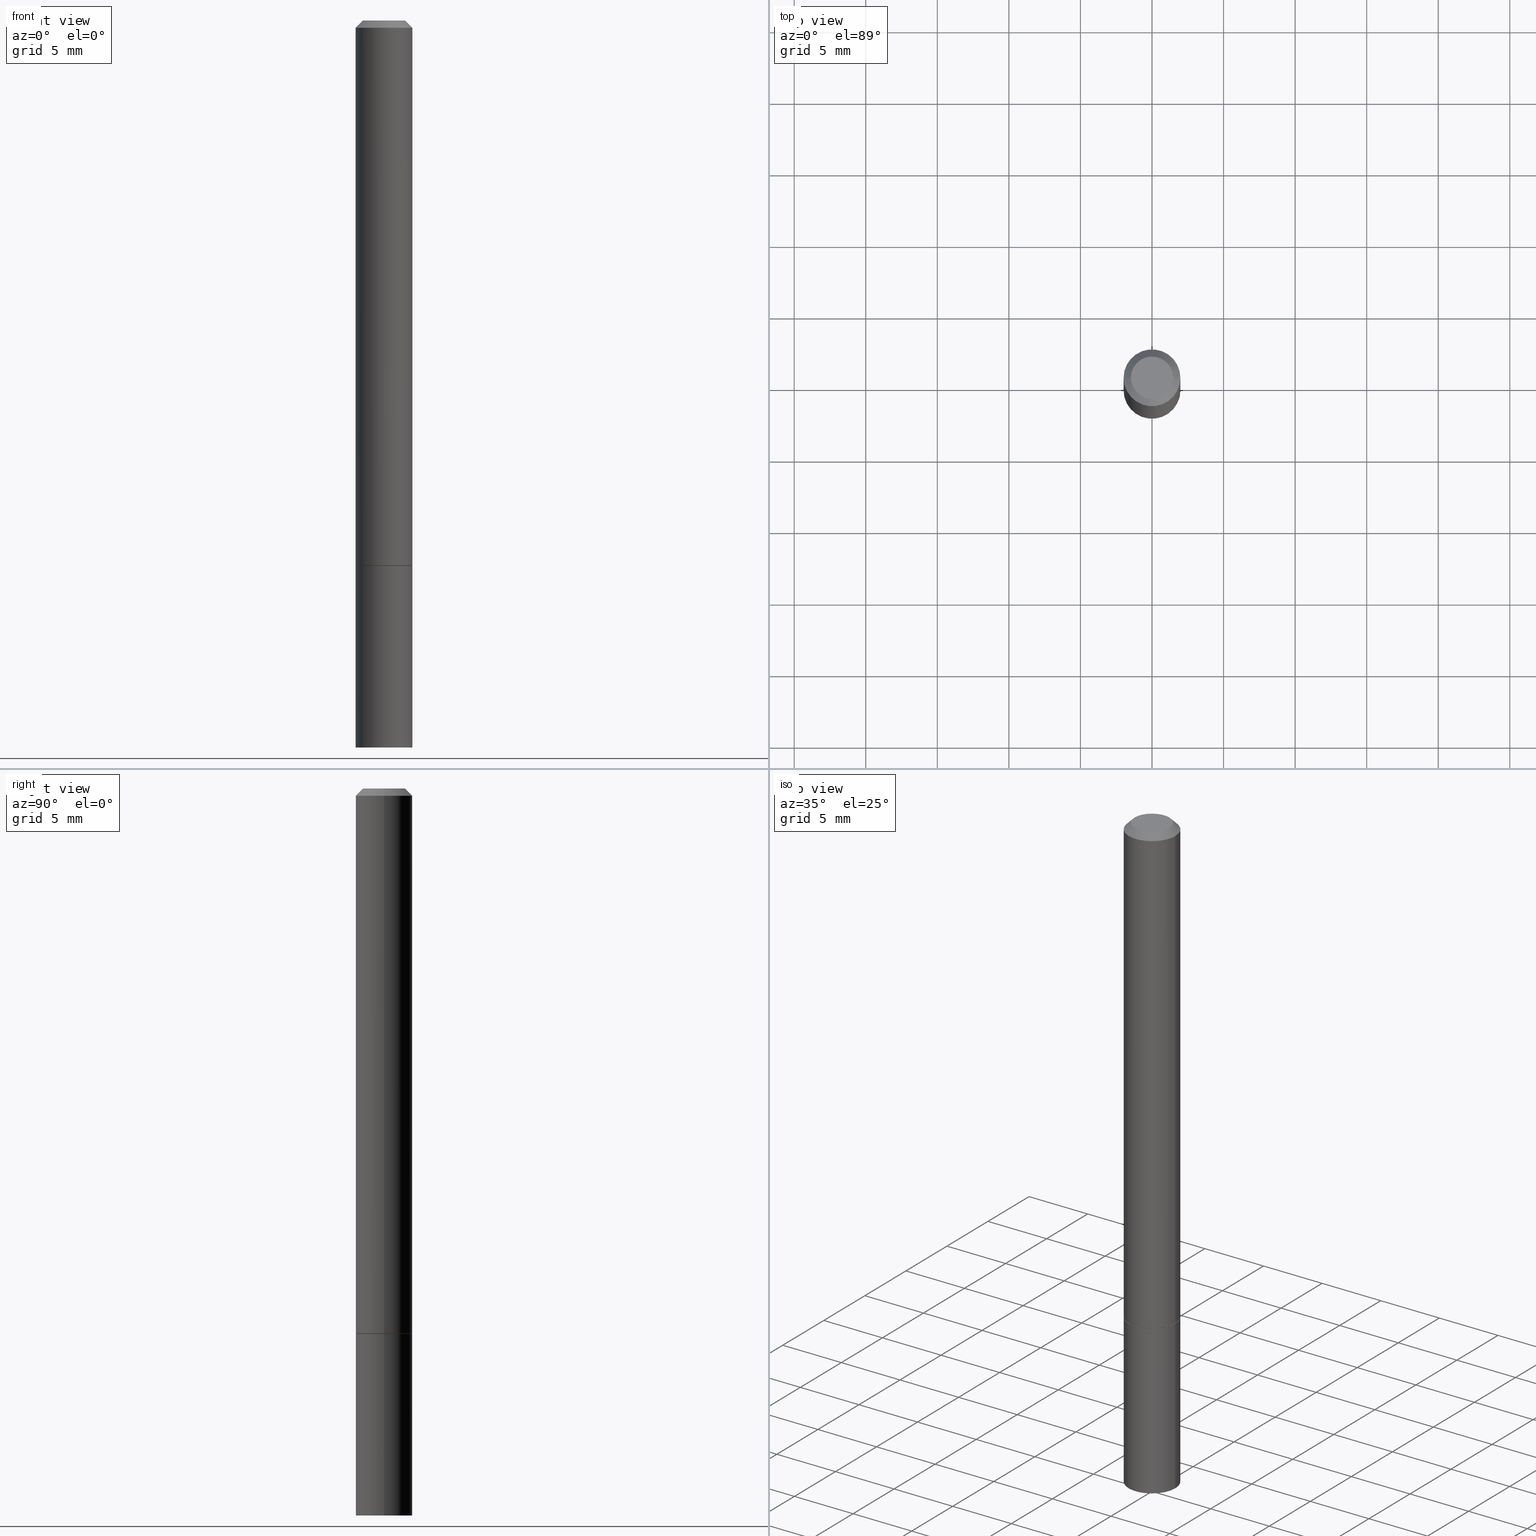
[diagram: canonical four-view strip — front | top / right | iso, engineering-drawing reading convention]
A machine part, canonical four-view strip (front | top / right | iso — engineering-drawing reading convention). The complete STEP part file that produces these views, byte-faithful:
ISO-10303-21;
HEADER;
FILE_DESCRIPTION (( 'STEP AP203' ),
    '1' );
FILE_NAME ('30119.STEP',
    '2023-03-21T20:22:02',
    ( '' ),
    ( '' ),
    'SwSTEP 2.0',
    'SolidWorks 2022',
    '' );
FILE_SCHEMA (( 'CONFIG_CONTROL_DESIGN' ));
ENDSEC;

DATA;
#1 = CARTESIAN_POINT ( 'NONE',  ( 0.07809999999999980846, -6.056345204028183286E-16, -0.02000000000000001776 ) ) ;
#2 = EDGE_LOOP ( 'NONE', ( #223, #321, #29, #153 ) ) ;
#3 = LOCAL_TIME ( 16, 22, 2.000000000000000000, #111 ) ;
#4 = CIRCLE ( 'NONE', #159, 0.07810000000000000275 ) ;
#5 = DIRECTION ( 'NONE',  ( -2.445468806185136877E-29, 3.491481338843145188E-15, 1.000000000000000000 ) ) ;
#6 = FACE_OUTER_BOUND ( 'NONE', #323, .T. ) ;
#7 = PERSON_AND_ORGANIZATION ( #191, #105 ) ;
#8 = CC_DESIGN_DATE_AND_TIME_ASSIGNMENT ( #183, #296, ( #275 ) ) ;
#9 = DIRECTION ( 'NONE',  ( 2.438088387897960049E-29, -3.491481338843145188E-15, -1.000000000000000000 ) ) ;
#10 = AXIS2_PLACEMENT_3D ( 'NONE', #246, #36, #301 ) ;
#11 = AXIS2_PLACEMENT_3D ( 'NONE', #282, #156, #92 ) ;
#12 = CARTESIAN_POINT ( 'NONE',  ( 0.07810000000000000275, -5.453693851272974364E-16, 3.808294061896625703E-30 ) ) ;
#13 = CARTESIAN_POINT ( 'NONE',  ( -0.07809999999999991949, -6.437593292558994518E-15, -2.000000000000000000 ) ) ;
#14 = ADVANCED_FACE ( 'NONE', ( #158 ), #27, .T. ) ;
#15 = FACE_OUTER_BOUND ( 'NONE', #293, .T. ) ;
#16 = CARTESIAN_POINT ( 'NONE',  ( 3.665757740471518732E-29, -5.233730526925875170E-15, -1.498999999999999666 ) ) ;
#17 = APPLICATION_CONTEXT ( 'configuration controlled 3d designs of mechanical parts and assemblies' ) ;
#18 = APPROVAL ( #133, 'UNSPECIFIED' ) ;
#19 = CIRCLE ( 'NONE', #20, 0.07809999999999980846 ) ;
#20 = AXIS2_PLACEMENT_3D ( 'NONE', #333, #33, #160 ) ;
#21 = EDGE_CURVE ( 'NONE', #55, #366, #64, .T. ) ;
#22 = EDGE_CURVE ( 'NONE', #108, #347, #68, .T. ) ;
#23 = CARTESIAN_POINT ( 'NONE',  ( 0.07810000000000000275, -5.782591393392014824E-15, -1.499999999999999778 ) ) ;
#24 = FACE_OUTER_BOUND ( 'NONE', #91, .T. ) ;
#25 = EDGE_LOOP ( 'NONE', ( #232, #88, #78, #61 ) ) ;
#26 = ORIENTED_EDGE ( 'NONE', *, *, #225, .T. ) ;
#27 = CYLINDRICAL_SURFACE ( 'NONE', #274, 0.07809999999999991949 ) ;
#28 = ORIENTED_EDGE ( 'NONE', *, *, #337, .T. ) ;
#29 = ORIENTED_EDGE ( 'NONE', *, *, #327, .F. ) ;
#30 = CC_DESIGN_PERSON_AND_ORGANIZATION_ASSIGNMENT ( #240, #368, ( #86 ) ) ;
#31 = PERSON_AND_ORGANIZATION ( #191, #105 ) ;
#32 = CARTESIAN_POINT ( 'NONE',  ( 4.890937612370273194E-29, -6.982962677686291165E-15, -2.000000000000000000 ) ) ;
#33 = DIRECTION ( 'NONE',  ( -2.445468806185136597E-29, 3.491481338843145583E-15, 1.000000000000000000 ) ) ;
#34 = COORDINATED_UNIVERSAL_TIME_OFFSET ( 5, 0, .BEHIND. ) ;
#35 = DIRECTION ( 'NONE',  ( -2.445468806185136877E-29, 3.491481338843145188E-15, 1.000000000000000000 ) ) ;
#36 = DIRECTION ( 'NONE',  ( -2.445468806185136597E-29, 3.491481338843145583E-15, 1.000000000000000000 ) ) ;
#37 = ADVANCED_FACE ( 'NONE', ( #99 ), #63, .T. ) ;
#38 = VECTOR ( 'NONE', #188, 39.37007874015748143 ) ;
#39 = AXIS2_PLACEMENT_3D ( 'NONE', #290, #317, #113 ) ;
#40 = DIRECTION ( 'NONE',  ( 1.000000000000000000, -6.982962677686265922E-15, 0.000000000000000000 ) ) ;
#41 = CARTESIAN_POINT ( 'NONE',  ( -0.07809999999999991949, 5.549338766286376731E-16, -3.841688305489077071E-30 ) ) ;
#42 = PRODUCT ( '30119', '30119', '', ( #87 ) ) ;
#43 = DIRECTION ( 'NONE',  ( -2.445468806185136597E-29, 3.491481338843145583E-15, 1.000000000000000000 ) ) ;
#44 = FACE_OUTER_BOUND ( 'NONE', #204, .T. ) ;
#45 = AXIS2_PLACEMENT_3D ( 'NONE', #208, #228, #83 ) ;
#46 = CC_DESIGN_PERSON_AND_ORGANIZATION_ASSIGNMENT ( #145, #101, ( #275 ) ) ;
#47 = ADVANCED_FACE ( 'NONE', ( #6 ), #310, .F. ) ;
#48 = VERTEX_POINT ( 'NONE', #302 ) ;
#49 = ADVANCED_FACE ( 'NONE', ( #44 ), #276, .T. ) ;
#50 = LOCAL_TIME ( 16, 22, 2.000000000000000000, #184 ) ;
#51 = CIRCLE ( 'NONE', #284, 0.05809999999999985315 ) ;
#52 =( GEOMETRIC_REPRESENTATION_CONTEXT ( 3 ) GLOBAL_UNCERTAINTY_ASSIGNED_CONTEXT ( ( #224 ) ) GLOBAL_UNIT_ASSIGNED_CONTEXT ( ( #234, #125, #236 ) ) REPRESENTATION_CONTEXT ( 'NONE', 'WORKASPACE' ) );
#53 = CARTESIAN_POINT ( 'NONE',  ( 5.019963266536729081E-19, -6.968671878504553375E-15, -1.995906952437995097 ) ) ;
#54 = VERTEX_POINT ( 'NONE', #230 ) ;
#55 = VERTEX_POINT ( 'NONE', #363 ) ;
#56 = ORIENTED_EDGE ( 'NONE', *, *, #168, .F. ) ;
#57 = ORIENTED_EDGE ( 'NONE', *, *, #264, .T. ) ;
#58 = DIRECTION ( 'NONE',  ( 1.000000000000000000, 0.000000000000000000, 0.000000000000000000 ) ) ;
#59 = ORIENTED_EDGE ( 'NONE', *, *, #21, .F. ) ;
#60 = CONICAL_SURFACE ( 'NONE', #39, 751.2258538476644389, 1.518436449235073482 ) ;
#61 = ORIENTED_EDGE ( 'NONE', *, *, #291, .F. ) ;
#62 = LINE ( 'NONE', #1, #174 ) ;
#63 = CYLINDRICAL_SURFACE ( 'NONE', #127, 0.07809999999999991949 ) ;
#64 = CIRCLE ( 'NONE', #45, 0.07810000000000000275 ) ;
#65 = APPROVAL_ROLE ( '' ) ;
#66 = CIRCLE ( 'NONE', #325, 0.07809999999999980846 ) ;
#67 = LOCAL_TIME ( 16, 22, 2.000000000000000000, #34 ) ;
#68 = LINE ( 'NONE', #12, #182 ) ;
#69 = PERSON_AND_ORGANIZATION_ROLE ( 'creator' ) ;
#70 = CARTESIAN_POINT ( 'NONE',  ( 0.07809999999999991949, -7.518767571312248168E-15, -2.000000000000000000 ) ) ;
#71 = FACE_OUTER_BOUND ( 'NONE', #155, .T. ) ;
#72 = CLOSED_SHELL ( 'NONE', ( #49, #14, #123, #370, #37, #260, #271, #144 ) ) ;
#73 = DIRECTION ( 'NONE',  ( -1.000000000000000000, 6.982962677686265922E-15, -4.876176775795935793E-29 ) ) ;
#74 = EDGE_CURVE ( 'NONE', #194, #390, #237, .T. ) ;
#75 = AXIS2_PLACEMENT_3D ( 'NONE', #350, #313, #359 ) ;
#76 = APPROVAL_DATE_TIME ( #82, #163 ) ;
#77 = CARTESIAN_POINT ( 'NONE',  ( -0.07809999999999980846, 4.755397583504331521E-16, -0.02000000000000001776 ) ) ;
#78 = ORIENTED_EDGE ( 'NONE', *, *, #342, .T. ) ;
#79 = APPROVAL ( #330, 'UNSPECIFIED' ) ;
#80 = CARTESIAN_POINT ( 'NONE',  ( 4.880577650073855844E-29, -6.969173874831158221E-15, -1.995906952437995097 ) ) ;
#81 = DIRECTION ( 'NONE',  ( -2.445468806185136597E-29, 3.491481338843145583E-15, 1.000000000000000000 ) ) ;
#82 = DATE_AND_TIME ( #227, #3 ) ;
#83 = DIRECTION ( 'NONE',  ( 1.000000000000000000, -6.982962677686266711E-15, 0.000000000000000000 ) ) ;
#84 = VERTEX_POINT ( 'NONE', #80 ) ;
#85 = AXIS2_PLACEMENT_3D ( 'NONE', #170, #273, #121 ) ;
#86 = PRODUCT_DEFINITION_FORMATION_WITH_SPECIFIED_SOURCE ( 'ANY', '', #42, .NOT_KNOWN. ) ;
#87 = MECHANICAL_CONTEXT ( 'NONE', #329, 'mechanical' ) ;
#88 = ORIENTED_EDGE ( 'NONE', *, *, #373, .T. ) ;
#89 = CARTESIAN_POINT ( 'NONE',  ( -5.019963265560543563E-19, -6.968671878504553375E-15, -1.995906952437995097 ) ) ;
#90 = DIRECTION ( 'NONE',  ( -2.445468806185136597E-29, 3.491481338843145583E-15, 1.000000000000000000 ) ) ;
#91 = EDGE_LOOP ( 'NONE', ( #117, #322 ) ) ;
#92 = DIRECTION ( 'NONE',  ( -1.000000000000000000, 6.982962677686267499E-15, 0.000000000000000000 ) ) ;
#93 = EDGE_LOOP ( 'NONE', ( #315, #308, #383, #365 ) ) ;
#94 = MANIFOLD_SOLID_BREP ( 'Body-Move/Copy2[2]', #72 ) ;
#95 = CARTESIAN_POINT ( 'NONE',  ( -0.07810000000000000275, -2.096846200222727419E-15, -1.498999999999999666 ) ) ;
#96 = ORIENTED_EDGE ( 'NONE', *, *, #139, .T. ) ;
#97 = EDGE_CURVE ( 'NONE', #108, #154, #171, .T. ) ;
#98 = SHAPE_DEFINITION_REPRESENTATION ( #217, #377 ) ;
#99 = FACE_OUTER_BOUND ( 'NONE', #93, .T. ) ;
#100 = DATE_TIME_ROLE ( 'classification_date' ) ;
#101 = PERSON_AND_ORGANIZATION_ROLE ( 'creator' ) ;
#102 = VECTOR ( 'NONE', #220, 39.37007874015748143 ) ;
#103 = FACE_OUTER_BOUND ( 'NONE', #180, .T. ) ;
#104 = CARTESIAN_POINT ( 'NONE',  ( 3.668203209277704335E-29, -5.237222008264717388E-15, -1.499999999999999778 ) ) ;
#105 = ORGANIZATION ( 'UNSPECIFIED', 'UNSPECIFIED', '' ) ;
#106 = AXIS2_PLACEMENT_3D ( 'NONE', #32, #298, #130 ) ;
#107 = VECTOR ( 'NONE', #389, 39.37007874015748143 ) ;
#108 = VERTEX_POINT ( 'NONE', #70 ) ;
#109 = ORIENTED_EDGE ( 'NONE', *, *, #74, .T. ) ;
#110 = CARTESIAN_POINT ( 'NONE',  ( 0.000000000000000000, 0.000000000000000000, 0.000000000000000000 ) ) ;
#111 = COORDINATED_UNIVERSAL_TIME_OFFSET ( 5, 0, .BEHIND. ) ;
#112 = DIRECTION ( 'NONE',  ( 1.000000000000000000, -6.982962677686266711E-15, 4.876176775795935232E-29 ) ) ;
#113 = DIRECTION ( 'NONE',  ( -1.000000000000000000, 6.982962677686265922E-15, 0.000000000000000000 ) ) ;
#114 = DIRECTION ( 'NONE',  ( -1.000000000000000000, 6.982962677686265922E-15, 0.000000000000000000 ) ) ;
#115 = DIRECTION ( 'NONE',  ( 1.000000000000000000, -6.982962677686266711E-15, 4.876176775795935793E-29 ) ) ;
#116 = ORIENTED_EDGE ( 'NONE', *, *, #373, .F. ) ;
#117 = ORIENTED_EDGE ( 'NONE', *, *, #249, .F. ) ;
#118 = CIRCLE ( 'NONE', #229, 0.07710000000000000187 ) ;
#119 = CARTESIAN_POINT ( 'NONE',  ( 0.07710000000000000187, -5.775608430714328810E-15, -1.499999999999999778 ) ) ;
#120 = EDGE_CURVE ( 'NONE', #84, #154, #197, .T. ) ;
#121 = DIRECTION ( 'NONE',  ( 1.000000000000000000, -6.982962677686265922E-15, 0.000000000000000000 ) ) ;
#122 = ORIENTED_EDGE ( 'NONE', *, *, #288, .F. ) ;
#123 = ADVANCED_FACE ( 'NONE', ( #202 ), #300, .T. ) ;
#124 = ORIENTED_EDGE ( 'NONE', *, *, #337, .F. ) ;
#125 =( NAMED_UNIT ( * ) PLANE_ANGLE_UNIT ( ) SI_UNIT ( $, .RADIAN. ) );
#126 = ADVANCED_FACE ( 'NONE', ( #103 ), #261, .F. ) ;
#127 = AXIS2_PLACEMENT_3D ( 'NONE', #131, #135, #244 ) ;
#128 = LOCAL_TIME ( 16, 22, 2.000000000000000000, #242 ) ;
#129 = APPROVAL_ROLE ( '' ) ;
#130 = DIRECTION ( 'NONE',  ( 1.000000000000000000, -6.982962677686266711E-15, 0.000000000000000000 ) ) ;
#131 = CARTESIAN_POINT ( 'NONE',  ( 0.000000000000000000, 0.000000000000000000, 0.000000000000000000 ) ) ;
#132 = ORIENTED_EDGE ( 'NONE', *, *, #97, .F. ) ;
#133 = APPROVAL_STATUS ( 'not_yet_approved' ) ;
#134 = DIRECTION ( 'NONE',  ( -2.445468806185136597E-29, 3.491481338843145583E-15, 1.000000000000000000 ) ) ;
#135 = DIRECTION ( 'NONE',  ( -2.445468806185136597E-29, 3.491481338843145583E-15, 1.000000000000000000 ) ) ;
#136 = DIRECTION ( 'NONE',  ( -2.445468806185136597E-29, 3.491481338843145583E-15, 1.000000000000000000 ) ) ;
#137 = DIMENSIONAL_EXPONENTS ( 1.000000000000000000, 0.000000000000000000, 0.000000000000000000, 0.000000000000000000, 0.000000000000000000, 0.000000000000000000, 0.000000000000000000 ) ;
#138 = CYLINDRICAL_SURFACE ( 'NONE', #305, 0.07810000000000000275 ) ;
#139 = EDGE_CURVE ( 'NONE', #366, #286, #355, .T. ) ;
#140 = DIRECTION ( 'NONE',  ( 1.000000000000000000, -6.982962677686266711E-15, 0.000000000000000000 ) ) ;
#141 = AXIS2_PLACEMENT_3D ( 'NONE', #270, #136, #372 ) ;
#142 = AXIS2_PLACEMENT_3D ( 'NONE', #360, #203, #58 ) ;
#143 = CARTESIAN_POINT ( 'NONE',  ( 3.668203209277704335E-29, -5.237222008264717388E-15, -1.499999999999999778 ) ) ;
#144 = ADVANCED_FACE ( 'NONE', ( #71 ), #169, .F. ) ;
#145 = PERSON_AND_ORGANIZATION ( #191, #105 ) ;
#146 = AXIS2_PLACEMENT_3D ( 'NONE', #149, #386, #114 ) ;
#147 = CC_DESIGN_APPROVAL ( #79, ( #238 ) ) ;
#148 = ORIENTED_EDGE ( 'NONE', *, *, #120, .F. ) ;
#149 = CARTESIAN_POINT ( 'NONE',  ( 1.011592276483428826E-27, -1.444285671085496418E-13, -41.36598569259547986 ) ) ;
#150 = DIRECTION ( 'NONE',  ( 2.438088387897960049E-29, -3.491481338843145188E-15, -1.000000000000000000 ) ) ;
#151 = DIRECTION ( 'NONE',  ( 0.7071067811865464625, -7.319954787623252890E-15, -0.7071067811865485719 ) ) ;
#152 = DIRECTION ( 'NONE',  ( 0.9986295347545742773, -7.033825938271998700E-15, -0.05233595624293709697 ) ) ;
#153 = ORIENTED_EDGE ( 'NONE', *, *, #22, .F. ) ;
#154 = VERTEX_POINT ( 'NONE', #13 ) ;
#155 = EDGE_LOOP ( 'NONE', ( #173, #201 ) ) ;
#156 = DIRECTION ( 'NONE',  ( 2.445468806185136597E-29, -3.491481338843145583E-15, -1.000000000000000000 ) ) ;
#157 = ORIENTED_EDGE ( 'NONE', *, *, #288, .T. ) ;
#158 = FACE_OUTER_BOUND ( 'NONE', #361, .T. ) ;
#159 = AXIS2_PLACEMENT_3D ( 'NONE', #351, #81, #198 ) ;
#160 = DIRECTION ( 'NONE',  ( 1.000000000000000000, -6.982962677686267499E-15, 0.000000000000000000 ) ) ;
#161 = DATE_AND_TIME ( #334, #277 ) ;
#162 = COORDINATED_UNIVERSAL_TIME_OFFSET ( 5, 0, .BEHIND. ) ;
#163 = APPROVAL ( #376, 'UNSPECIFIED' ) ;
#164 = CARTESIAN_POINT ( 'NONE',  ( 4.057101315735710372E-16, 0.05809999999999985315, -2.028550657867862335E-16 ) ) ;
#165 = VECTOR ( 'NONE', #152, 39.37007874015748143 ) ;
#166 = CYLINDRICAL_SURFACE ( 'NONE', #141, 0.07810000000000000275 ) ;
#167 = DIRECTION ( 'NONE',  ( -2.445468806185136597E-29, 3.491481338843145583E-15, 1.000000000000000000 ) ) ;
#168 = EDGE_CURVE ( 'NONE', #55, #48, #272, .T. ) ;
#169 = PLANE ( 'NONE',  #213 ) ;
#170 = CARTESIAN_POINT ( 'NONE',  ( 3.668203209277704335E-29, -5.237222008264717388E-15, -1.499999999999999778 ) ) ;
#171 = CIRCLE ( 'NONE', #106, 0.07810000000000000275 ) ;
#172 = LINE ( 'NONE', #77, #107 ) ;
#173 = ORIENTED_EDGE ( 'NONE', *, *, #251, .T. ) ;
#174 = VECTOR ( 'NONE', #151, 39.37007874015748143 ) ;
#175 = CARTESIAN_POINT ( 'NONE',  ( -0.05809999999999985315, 4.406249449620020947E-16, -2.959251149157179307E-30 ) ) ;
#176 = PERSON_AND_ORGANIZATION_ROLE ( 'design_owner' ) ;
#177 = EDGE_LOOP ( 'NONE', ( #148, #28, #255 ) ) ;
#178 = VECTOR ( 'NONE', #35, 39.37007874015748143 ) ;
#179 = ORIENTED_EDGE ( 'NONE', *, *, #120, .T. ) ;
#180 = EDGE_LOOP ( 'NONE', ( #124, #179, #132 ) ) ;
#181 = ORIENTED_EDGE ( 'NONE', *, *, #339, .T. ) ;
#182 = VECTOR ( 'NONE', #5, 39.37007874015748143 ) ;
#183 = DATE_AND_TIME ( #214, #67 ) ;
#184 = COORDINATED_UNIVERSAL_TIME_OFFSET ( 5, 0, .BEHIND. ) ;
#185 = ADVANCED_FACE ( 'NONE', ( #15 ), #138, .T. ) ;
#186 = PERSON_AND_ORGANIZATION_ROLE ( 'classification_officer' ) ;
#187 = DIRECTION ( 'NONE',  ( -0.9986295347545742773, 6.790662755453666100E-15, -0.05233595624293709697 ) ) ;
#188 = DIRECTION ( 'NONE',  ( -2.445468806185136877E-29, 3.491481338843145188E-15, 1.000000000000000000 ) ) ;
#189 = DIRECTION ( 'NONE',  ( 1.000000000000000000, -6.982962677686265922E-15, 0.000000000000000000 ) ) ;
#190 = VECTOR ( 'NONE', #231, 39.37007874015748854 ) ;
#191 = PERSON ( 'UNSPECIFIED', 'UNSPECIFIED', 'UNSPECIFIED', ('UNSPECIFIED'), ('UNSPECIFIED'), ('UNSPECIFIED') ) ;
#192 = CIRCLE ( 'NONE', #10, 0.07810000000000000275 ) ;
#193 = DIRECTION ( 'NONE',  ( 1.000000000000000000, -6.982962677686265922E-15, 4.876176775795935793E-29 ) ) ;
#194 = VERTEX_POINT ( 'NONE', #299 ) ;
#195 = CC_DESIGN_PERSON_AND_ORGANIZATION_ASSIGNMENT ( #7, #69, ( #86 ) ) ;
#196 = AXIS2_PLACEMENT_3D ( 'NONE', #110, #226, #115 ) ;
#197 = LINE ( 'NONE', #89, #340 ) ;
#198 = DIRECTION ( 'NONE',  ( 1.000000000000000000, -6.982962677686266711E-15, 0.000000000000000000 ) ) ;
#199 = ORIENTED_EDGE ( 'NONE', *, *, #21, .T. ) ;
#200 = DIRECTION ( 'NONE',  ( -2.445468806185136597E-29, 3.491481338843145583E-15, 1.000000000000000000 ) ) ;
#201 = ORIENTED_EDGE ( 'NONE', *, *, #326, .T. ) ;
#202 = FACE_OUTER_BOUND ( 'NONE', #25, .T. ) ;
#203 = DIRECTION ( 'NONE',  ( 0.000000000000000000, 0.000000000000000000, 1.000000000000000000 ) ) ;
#204 = EDGE_LOOP ( 'NONE', ( #258, #157, #59, #316 ) ) ;
#205 = EDGE_CURVE ( 'NONE', #366, #55, #312, .T. ) ;
#206 = CARTESIAN_POINT ( 'NONE',  ( 0.05809999999999985315, -5.021147270366716439E-16, 3.173941575800420060E-30 ) ) ;
#207 = AXIS2_PLACEMENT_3D ( 'NONE', #254, #200, #318 ) ;
#208 = CARTESIAN_POINT ( 'NONE',  ( 3.665757740471518732E-29, -5.233730526925875170E-15, -1.498999999999999666 ) ) ;
#209 = CC_DESIGN_APPROVAL ( #163, ( #275 ) ) ;
#210 = EDGE_CURVE ( 'NONE', #154, #54, #243, .T. ) ;
#211 = PERSON_AND_ORGANIZATION ( #191, #105 ) ;
#212 = CC_DESIGN_DATE_AND_TIME_ASSIGNMENT ( #367, #100, ( #238 ) ) ;
#213 = AXIS2_PLACEMENT_3D ( 'NONE', #164, #9, #215 ) ;
#214 = CALENDAR_DATE ( 2023, 21, 3 ) ;
#215 = DIRECTION ( 'NONE',  ( -1.000000000000000000, 6.982962677686265922E-15, -4.876176775795935793E-29 ) ) ;
#216 = DIRECTION ( 'NONE',  ( 1.000000000000000000, -6.982962677686266711E-15, 4.876176775795935793E-29 ) ) ;
#217 = PRODUCT_DEFINITION_SHAPE ( 'NONE', 'NONE',  #275 ) ;
#218 = CC_DESIGN_APPROVAL ( #18, ( #86 ) ) ;
#219 = CARTESIAN_POINT ( 'NONE',  ( 0.07809999999999991949, -5.453693851272968448E-16, 3.808294061896621499E-30 ) ) ;
#220 = DIRECTION ( 'NONE',  ( -2.445468806185136877E-29, 3.491481338843145188E-15, 1.000000000000000000 ) ) ;
#221 = PRODUCT_RELATED_PRODUCT_CATEGORY ( 'detail', '', ( #42 ) ) ;
#222 = CONICAL_SURFACE ( 'NONE', #269, 0.07710000000000000187, 0.7853981633974141952 ) ;
#223 = ORIENTED_EDGE ( 'NONE', *, *, #97, .T. ) ;
#224 = UNCERTAINTY_MEASURE_WITH_UNIT (LENGTH_MEASURE( 1.000000000000000082E-05 ), #234, 'distance_accuracy_value', 'NONE');
#225 = EDGE_CURVE ( 'NONE', #154, #108, #192, .T. ) ;
#226 = DIRECTION ( 'NONE',  ( -2.445468806185136597E-29, 3.491481338843145583E-15, 1.000000000000000000 ) ) ;
#227 = CALENDAR_DATE ( 2023, 21, 3 ) ;
#228 = DIRECTION ( 'NONE',  ( -2.445468806185136597E-29, 3.491481338843145583E-15, 1.000000000000000000 ) ) ;
#229 = AXIS2_PLACEMENT_3D ( 'NONE', #104, #167, #40 ) ;
#230 = CARTESIAN_POINT ( 'NONE',  ( -0.07810000000000000275, -5.555158466346866012E-15, -1.499999999999999778 ) ) ;
#231 = DIRECTION ( 'NONE',  ( 0.7071067811865232589, -2.468850131082003836E-15, 0.7071067811865715536 ) ) ;
#232 = ORIENTED_EDGE ( 'NONE', *, *, #326, .F. ) ;
#233 = ORIENTED_EDGE ( 'NONE', *, *, #327, .T. ) ;
#234 =( CONVERSION_BASED_UNIT ( 'INCH', #289 ) LENGTH_UNIT ( ) NAMED_UNIT ( #137 ) );
#235 = CARTESIAN_POINT ( 'NONE',  ( 4.890937612370276662E-31, -6.982962677686296539E-17, -0.02000000000000001776 ) ) ;
#236 =( NAMED_UNIT ( * ) SI_UNIT ( $, .STERADIAN. ) SOLID_ANGLE_UNIT ( ) );
#237 = CIRCLE ( 'NONE', #75, 0.07710000000000000187 ) ;
#238 = SECURITY_CLASSIFICATION ( '', '', #297 ) ;
#239 = ADVANCED_FACE ( 'NONE', ( #336 ), #166, .T. ) ;
#240 = PERSON_AND_ORGANIZATION ( #191, #105 ) ;
#241 = CARTESIAN_POINT ( 'NONE',  ( 4.890937612370276662E-31, -6.982962677686296539E-17, -0.02000000000000001776 ) ) ;
#242 = COORDINATED_UNIVERSAL_TIME_OFFSET ( 5, 0, .BEHIND. ) ;
#243 = LINE ( 'NONE', #343, #178 ) ;
#244 = DIRECTION ( 'NONE',  ( 1.000000000000000000, -6.982962677686266711E-15, 4.876176775795935232E-29 ) ) ;
#245 = CARTESIAN_POINT ( 'NONE',  ( 0.000000000000000000, 0.000000000000000000, 0.000000000000000000 ) ) ;
#246 = CARTESIAN_POINT ( 'NONE',  ( 4.890937612370273194E-29, -6.982962677686291165E-15, -2.000000000000000000 ) ) ;
#247 = CARTESIAN_POINT ( 'NONE',  ( 0.000000000000000000, 0.000000000000000000, 0.000000000000000000 ) ) ;
#248 = DIRECTION ( 'NONE',  ( -2.445468806185136597E-29, 3.491481338843145583E-15, 1.000000000000000000 ) ) ;
#249 = EDGE_CURVE ( 'NONE', #390, #194, #118, .T. ) ;
#250 = CIRCLE ( 'NONE', #196, 0.05809999999999985315 ) ;
#251 = EDGE_CURVE ( 'NONE', #287, #379, #51, .T. ) ;
#252 = ORIENTED_EDGE ( 'NONE', *, *, #205, .F. ) ;
#253 = DIRECTION ( 'NONE',  ( 2.445468806185136597E-29, -3.491481338843145583E-15, -1.000000000000000000 ) ) ;
#254 = CARTESIAN_POINT ( 'NONE',  ( 3.668203209277704335E-29, -5.237222008264717388E-15, -1.499999999999999778 ) ) ;
#255 = ORIENTED_EDGE ( 'NONE', *, *, #225, .F. ) ;
#256 = FACE_OUTER_BOUND ( 'NONE', #281, .T. ) ;
#257 = CARTESIAN_POINT ( 'NONE',  ( 3.668203209277704335E-29, -5.237222008264717388E-15, -1.499999999999999778 ) ) ;
#258 = ORIENTED_EDGE ( 'NONE', *, *, #249, .T. ) ;
#259 = CARTESIAN_POINT ( 'NONE',  ( 0.000000000000000000, 0.000000000000000000, 0.000000000000000000 ) ) ;
#260 = ADVANCED_FACE ( 'NONE', ( #303 ), #222, .T. ) ;
#261 = CONICAL_SURFACE ( 'NONE', #146, 751.2258538476644389, 1.518436449235073482 ) ;
#262 = APPROVAL_PERSON_ORGANIZATION ( #387, #163, #382 ) ;
#263 = CC_DESIGN_PERSON_AND_ORGANIZATION_ASSIGNMENT ( #364, #176, ( #42 ) ) ;
#264 = EDGE_CURVE ( 'NONE', #390, #55, #278, .T. ) ;
#265 = FACE_OUTER_BOUND ( 'NONE', #177, .T. ) ;
#266 = CALENDAR_DATE ( 2023, 21, 3 ) ;
#267 = APPROVAL_DATE_TIME ( #161, #18 ) ;
#268 = PERSON_AND_ORGANIZATION ( #191, #105 ) ;
#269 = AXIS2_PLACEMENT_3D ( 'NONE', #143, #248, #189 ) ;
#270 = CARTESIAN_POINT ( 'NONE',  ( 0.000000000000000000, 0.000000000000000000, 0.000000000000000000 ) ) ;
#271 = ADVANCED_FACE ( 'NONE', ( #24 ), #381, .F. ) ;
#272 = LINE ( 'NONE', #219, #38 ) ;
#273 = DIRECTION ( 'NONE',  ( -2.445468806185136597E-29, 3.491481338843145583E-15, 1.000000000000000000 ) ) ;
#274 = AXIS2_PLACEMENT_3D ( 'NONE', #259, #385, #112 ) ;
#275 = PRODUCT_DEFINITION ( 'UNKNOWN', '', #86, #309 ) ;
#276 = CONICAL_SURFACE ( 'NONE', #85, 0.07710000000000000187, 0.7853981633974141952 ) ;
#277 = LOCAL_TIME ( 16, 22, 2.000000000000000000, #162 ) ;
#278 = LINE ( 'NONE', #279, #190 ) ;
#279 = CARTESIAN_POINT ( 'NONE',  ( 0.07710000000000000187, -5.775608430714328810E-15, -1.499999999999999778 ) ) ;
#280 = CARTESIAN_POINT ( 'NONE',  ( -0.07710000000000000187, -4.689393558993680526E-15, -1.499999999999999778 ) ) ;
#281 = EDGE_LOOP ( 'NONE', ( #116, #362, #388, #349 ) ) ;
#282 = CARTESIAN_POINT ( 'NONE',  ( 4.890937612370276662E-31, -6.982962677686296539E-17, -0.02000000000000001776 ) ) ;
#283 = CC_DESIGN_PERSON_AND_ORGANIZATION_ASSIGNMENT ( #268, #186, ( #238 ) ) ;
#284 = AXIS2_PLACEMENT_3D ( 'NONE', #245, #43, #216 ) ;
#285 = AXIS2_PLACEMENT_3D ( 'NONE', #304, #150, #73 ) ;
#286 = VERTEX_POINT ( 'NONE', #356 ) ;
#287 = VERTEX_POINT ( 'NONE', #175 ) ;
#288 = EDGE_CURVE ( 'NONE', #194, #366, #307, .T. ) ;
#289 = LENGTH_MEASURE_WITH_UNIT ( LENGTH_MEASURE( 0.02539999999999999897 ), #324 );
#290 = CARTESIAN_POINT ( 'NONE',  ( 1.011592276483428826E-27, -1.444285671085496418E-13, -41.36598569259547986 ) ) ;
#291 = EDGE_CURVE ( 'NONE', #287, #286, #172, .T. ) ;
#292 = DATE_AND_TIME ( #266, #50 ) ;
#293 = EDGE_LOOP ( 'NONE', ( #358, #26, #335, #352 ) ) ;
#294 = AXIS2_PLACEMENT_3D ( 'NONE', #241, #253, #369 ) ;
#295 = APPROVAL_PERSON_ORGANIZATION ( #31, #18, #129 ) ;
#296 = DATE_TIME_ROLE ( 'creation_date' ) ;
#297 = SECURITY_CLASSIFICATION_LEVEL ( 'unclassified' ) ;
#298 = DIRECTION ( 'NONE',  ( -2.445468806185136597E-29, 3.491481338843145583E-15, 1.000000000000000000 ) ) ;
#299 = CARTESIAN_POINT ( 'NONE',  ( -0.07710000000000000187, -4.684095104645458124E-15, -1.499999999999999778 ) ) ;
#300 = CONICAL_SURFACE ( 'NONE', #294, 0.07809999999999980846, 0.7853981633974468357 ) ;
#301 = DIRECTION ( 'NONE',  ( 1.000000000000000000, -6.982962677686266711E-15, 0.000000000000000000 ) ) ;
#302 = CARTESIAN_POINT ( 'NONE',  ( 0.07809999999999980846, -6.056345204028183286E-16, -0.02000000000000001776 ) ) ;
#303 = FACE_OUTER_BOUND ( 'NONE', #320, .T. ) ;
#304 = CARTESIAN_POINT ( 'NONE',  ( 5.453693851273340198E-16, 0.07809999999999475695, -1.500000000000000222 ) ) ;
#305 = AXIS2_PLACEMENT_3D ( 'NONE', #247, #134, #374 ) ;
#306 = APPLICATION_PROTOCOL_DEFINITION ( 'international standard', 'config_control_design', 1994, #17 ) ;
#307 = LINE ( 'NONE', #280, #345 ) ;
#308 = ORIENTED_EDGE ( 'NONE', *, *, #205, .T. ) ;
#309 = DESIGN_CONTEXT ( 'detailed design', #17, 'design' ) ;
#310 = PLANE ( 'NONE',  #285 ) ;
#311 = CC_DESIGN_SECURITY_CLASSIFICATION ( #238, ( #86 ) ) ;
#312 = CIRCLE ( 'NONE', #375, 0.07810000000000000275 ) ;
#313 = DIRECTION ( 'NONE',  ( -2.445468806185136597E-29, 3.491481338843145583E-15, 1.000000000000000000 ) ) ;
#314 = LINE ( 'NONE', #53, #165 ) ;
#315 = ORIENTED_EDGE ( 'NONE', *, *, #139, .F. ) ;
#316 = ORIENTED_EDGE ( 'NONE', *, *, #264, .F. ) ;
#317 = DIRECTION ( 'NONE',  ( 2.445468806185136597E-29, -3.491481338843145583E-15, -1.000000000000000000 ) ) ;
#318 = DIRECTION ( 'NONE',  ( 1.000000000000000000, -6.982962677686266711E-15, 0.000000000000000000 ) ) ;
#319 = EDGE_CURVE ( 'NONE', #286, #48, #66, .T. ) ;
#320 = EDGE_LOOP ( 'NONE', ( #122, #109, #57, #252 ) ) ;
#321 = ORIENTED_EDGE ( 'NONE', *, *, #210, .T. ) ;
#322 = ORIENTED_EDGE ( 'NONE', *, *, #74, .F. ) ;
#323 = EDGE_LOOP ( 'NONE', ( #233, #181 ) ) ;
#324 =( LENGTH_UNIT ( ) NAMED_UNIT ( * ) SI_UNIT ( $, .METRE. ) );
#325 = AXIS2_PLACEMENT_3D ( 'NONE', #235, #90, #384 ) ;
#326 = EDGE_CURVE ( 'NONE', #379, #287, #250, .T. ) ;
#327 = EDGE_CURVE ( 'NONE', #347, #54, #4, .T. ) ;
#328 = ORIENTED_EDGE ( 'NONE', *, *, #342, .F. ) ;
#329 = APPLICATION_CONTEXT ( 'configuration controlled 3d designs of mechanical parts and assemblies' ) ;
#330 = APPROVAL_STATUS ( 'not_yet_approved' ) ;
#331 = APPROVAL_DATE_TIME ( #292, #79 ) ;
#332 = CONICAL_SURFACE ( 'NONE', #11, 0.07809999999999980846, 0.7853981633974468357 ) ;
#333 = CARTESIAN_POINT ( 'NONE',  ( 4.890937612370276662E-31, -6.982962677686296539E-17, -0.02000000000000001776 ) ) ;
#334 = CALENDAR_DATE ( 2023, 21, 3 ) ;
#335 = ORIENTED_EDGE ( 'NONE', *, *, #22, .T. ) ;
#336 = FACE_OUTER_BOUND ( 'NONE', #2, .T. ) ;
#337 = EDGE_CURVE ( 'NONE', #84, #108, #314, .T. ) ;
#338 = DIRECTION ( 'NONE',  ( -2.445468806185136597E-29, 3.491481338843145583E-15, 1.000000000000000000 ) ) ;
#339 = EDGE_CURVE ( 'NONE', #54, #347, #380, .T. ) ;
#340 = VECTOR ( 'NONE', #187, 39.37007874015748143 ) ;
#341 = APPROVAL_PERSON_ORGANIZATION ( #211, #79, #65 ) ;
#342 = EDGE_CURVE ( 'NONE', #48, #286, #19, .T. ) ;
#343 = CARTESIAN_POINT ( 'NONE',  ( -0.07810000000000000275, 5.549338766286382647E-16, -3.841688305489081275E-30 ) ) ;
#344 = ADVANCED_FACE ( 'NONE', ( #265 ), #60, .F. ) ;
#345 = VECTOR ( 'NONE', #378, 39.37007874015748854 ) ;
#346 = MANIFOLD_SOLID_BREP ( 'Body-Move/Copy2[1]', #353 ) ;
#347 = VERTEX_POINT ( 'NONE', #23 ) ;
#348 = DIRECTION ( 'NONE',  ( -2.438088387897960049E-29, 3.491481338843145188E-15, 1.000000000000000000 ) ) ;
#349 = ORIENTED_EDGE ( 'NONE', *, *, #319, .T. ) ;
#350 = CARTESIAN_POINT ( 'NONE',  ( 3.668203209277704335E-29, -5.237222008264717388E-15, -1.499999999999999778 ) ) ;
#351 = CARTESIAN_POINT ( 'NONE',  ( 3.668203209277704335E-29, -5.237222008264717388E-15, -1.499999999999999778 ) ) ;
#352 = ORIENTED_EDGE ( 'NONE', *, *, #339, .F. ) ;
#353 = CLOSED_SHELL ( 'NONE', ( #239, #344, #126, #185, #47 ) ) ;
#354 = AXIS2_PLACEMENT_3D ( 'NONE', #257, #348, #193 ) ;
#355 = LINE ( 'NONE', #41, #102 ) ;
#356 = CARTESIAN_POINT ( 'NONE',  ( -0.07809999999999980846, 4.755397583504331521E-16, -0.02000000000000001776 ) ) ;
#357 = APPLICATION_PROTOCOL_DEFINITION ( 'international standard', 'config_control_design', 1994, #329 ) ;
#358 = ORIENTED_EDGE ( 'NONE', *, *, #210, .F. ) ;
#359 = DIRECTION ( 'NONE',  ( 1.000000000000000000, -6.982962677686265922E-15, 0.000000000000000000 ) ) ;
#360 = CARTESIAN_POINT ( 'NONE',  ( 0.000000000000000000, 0.000000000000000000, 0.000000000000000000 ) ) ;
#361 = EDGE_LOOP ( 'NONE', ( #199, #96, #328, #56 ) ) ;
#362 = ORIENTED_EDGE ( 'NONE', *, *, #251, .F. ) ;
#363 = CARTESIAN_POINT ( 'NONE',  ( 0.07810000000000000275, -5.779099912053172606E-15, -1.498999999999999666 ) ) ;
#364 = PERSON_AND_ORGANIZATION ( #191, #105 ) ;
#365 = ORIENTED_EDGE ( 'NONE', *, *, #319, .F. ) ;
#366 = VERTEX_POINT ( 'NONE', #95 ) ;
#367 = DATE_AND_TIME ( #371, #128 ) ;
#368 = PERSON_AND_ORGANIZATION_ROLE ( 'design_supplier' ) ;
#369 = DIRECTION ( 'NONE',  ( -1.000000000000000000, 6.982962677686267499E-15, 0.000000000000000000 ) ) ;
#370 = ADVANCED_FACE ( 'NONE', ( #256 ), #332, .T. ) ;
#371 = CALENDAR_DATE ( 2023, 21, 3 ) ;
#372 = DIRECTION ( 'NONE',  ( 1.000000000000000000, -6.982962677686266711E-15, 4.876176775795935232E-29 ) ) ;
#373 = EDGE_CURVE ( 'NONE', #379, #48, #62, .T. ) ;
#374 = DIRECTION ( 'NONE',  ( 1.000000000000000000, -6.982962677686266711E-15, 4.876176775795935232E-29 ) ) ;
#375 = AXIS2_PLACEMENT_3D ( 'NONE', #16, #338, #140 ) ;
#376 = APPROVAL_STATUS ( 'not_yet_approved' ) ;
#377 = ADVANCED_BREP_SHAPE_REPRESENTATION ( '30119', ( #346, #94, #142 ), #52 ) ;
#378 = DIRECTION ( 'NONE',  ( -0.7071067811865232589, 7.493145998870265808E-15, 0.7071067811865715536 ) ) ;
#379 = VERTEX_POINT ( 'NONE', #206 ) ;
#380 = CIRCLE ( 'NONE', #207, 0.07810000000000000275 ) ;
#381 = PLANE ( 'NONE',  #354 ) ;
#382 = APPROVAL_ROLE ( '' ) ;
#383 = ORIENTED_EDGE ( 'NONE', *, *, #168, .T. ) ;
#384 = DIRECTION ( 'NONE',  ( 1.000000000000000000, -6.982962677686267499E-15, 0.000000000000000000 ) ) ;
#385 = DIRECTION ( 'NONE',  ( -2.445468806185136597E-29, 3.491481338843145583E-15, 1.000000000000000000 ) ) ;
#386 = DIRECTION ( 'NONE',  ( 2.445468806185136597E-29, -3.491481338843145583E-15, -1.000000000000000000 ) ) ;
#387 = PERSON_AND_ORGANIZATION ( #191, #105 ) ;
#388 = ORIENTED_EDGE ( 'NONE', *, *, #291, .T. ) ;
#389 = DIRECTION ( 'NONE',  ( -0.7071067811865464625, 2.468850131082245622E-15, -0.7071067811865485719 ) ) ;
#390 = VERTEX_POINT ( 'NONE', #119 ) ;
ENDSEC;
END-ISO-10303-21;
